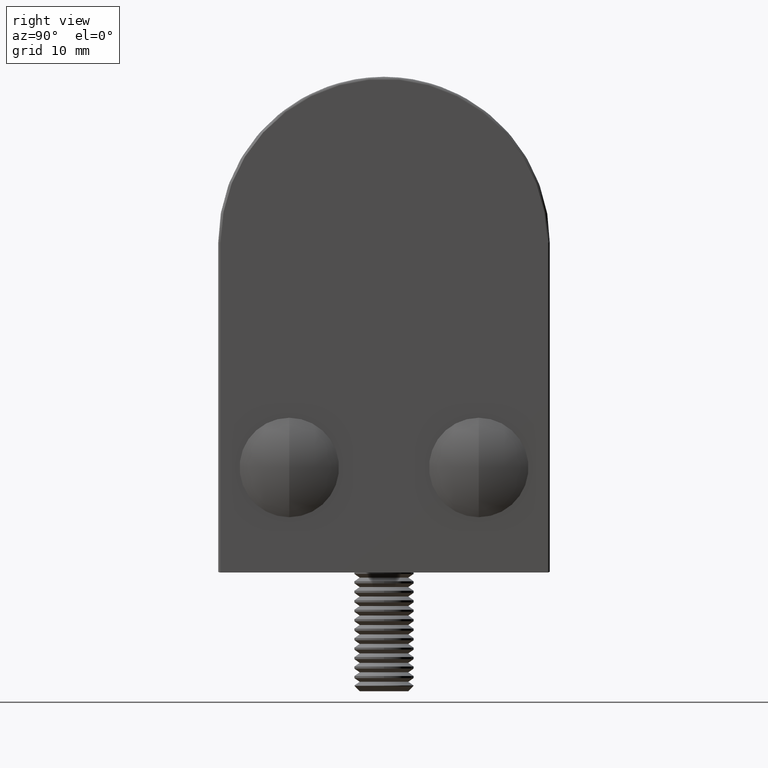
[diagram: clean part render]
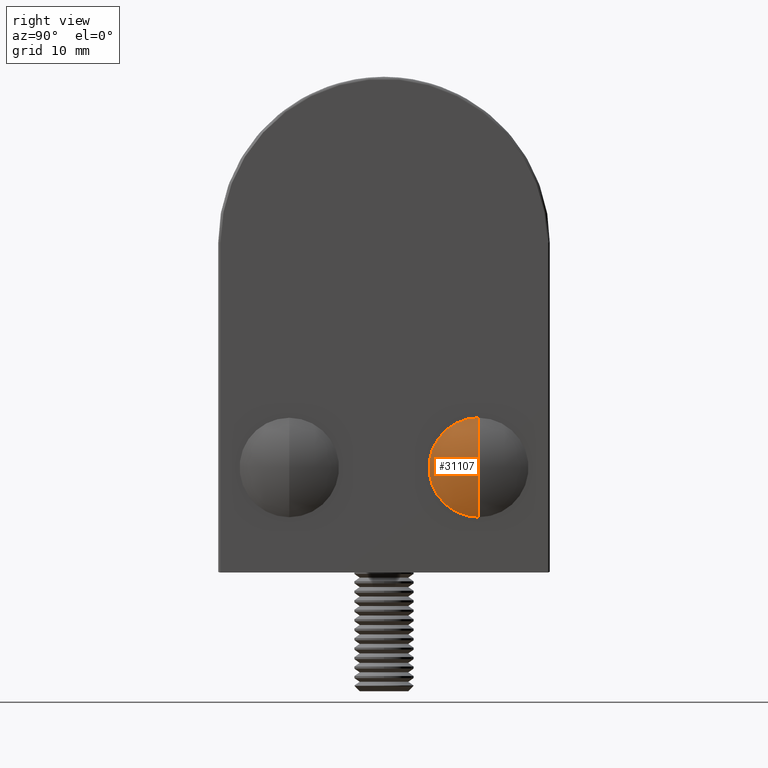
[diagram: same view with one face highlighted and labeled with its STEP entity id]
A machine part, right view. The second image highlights one B-rep face of the part: STEP entity #31107.
In plain terms, the highlighted spherical surface has radius 9.32 mm.
Its self-contained STEP definition (entity closure, byte-faithful):
#1612 = CARTESIAN_POINT ( 'NONE',  ( 0.0000000000000000000, -8.319999999999993200, 0.0000000000000000000 ) ) ;
#2581 = DIRECTION ( 'NONE',  ( 0.0000000000000000000, 0.0000000000000000000, -1.000000000000000000 ) ) ;
#3413 = CIRCLE ( 'NONE', #20766, 9.319999999999995000 ) ;
#3953 = DIRECTION ( 'NONE',  ( 1.224646799147353200E-016, -0.0000000000000000000, 1.000000000000000000 ) ) ;
#5590 = AXIS2_PLACEMENT_3D ( 'NONE', #1612, #6098, #37147 ) ;
#6098 = DIRECTION ( 'NONE',  ( 0.0000000000000000000, 0.0000000000000000000, 1.000000000000000000 ) ) ;
#6846 = DIRECTION ( 'NONE',  ( 0.0000000000000000000, 0.0000000000000000000, -1.000000000000000000 ) ) ;
#11685 = DIRECTION ( 'NONE',  ( -0.0000000000000000000, -1.000000000000000000, -0.0000000000000000000 ) ) ;
#13218 = CARTESIAN_POINT ( 'NONE',  ( 4.200000000000000200, 8.673617379884035500E-016, 0.0000000000000000000 ) ) ;
#14297 = EDGE_CURVE ( 'NONE', #42675, #51186, #3413, .T. ) ;
#15836 = CIRCLE ( 'NONE', #47795, 4.200000000000001100 ) ;
#18505 = CARTESIAN_POINT ( 'NONE',  ( 5.706854084026663700E-016, 1.000000000000000900, 0.0000000000000000000 ) ) ;
#19225 = ORIENTED_EDGE ( 'NONE', *, *, #45324, .T. ) ;
#19963 = FACE_OUTER_BOUND ( 'NONE', #44865, .T. ) ;
#20766 = AXIS2_PLACEMENT_3D ( 'NONE', #51164, #2581, #55433 ) ;
#21017 = ORIENTED_EDGE ( 'NONE', *, *, #14297, .F. ) ;
#23195 = CARTESIAN_POINT ( 'NONE',  ( -4.200000000000000200, 8.673617379884035500E-016, 5.143516556418884900E-016 ) ) ;
#24467 = CARTESIAN_POINT ( 'NONE',  ( 0.0000000000000000000, 0.0000000000000000000, 0.0000000000000000000 ) ) ;
#25539 = SPHERICAL_SURFACE ( 'NONE', #5590, 9.319999999999995000 ) ;
#26076 = AXIS2_PLACEMENT_3D ( 'NONE', #26853, #3953, #35041 ) ;
#26853 = CARTESIAN_POINT ( 'NONE',  ( 0.0000000000000000000, -8.319999999999993200, 0.0000000000000000000 ) ) ;
#31107 = ADVANCED_FACE ( 'NONE', ( #19963 ), #25539, .T. ) ;
#35041 = DIRECTION ( 'NONE',  ( 1.000000000000000000, 0.0000000000000000000, -1.224646799147353500E-016 ) ) ;
#37147 = DIRECTION ( 'NONE',  ( 1.000000000000000000, 0.0000000000000000000, 0.0000000000000000000 ) ) ;
#39153 = ORIENTED_EDGE ( 'NONE', *, *, #50910, .F. ) ;
#42675 = VERTEX_POINT ( 'NONE', #18505 ) ;
#44865 = EDGE_LOOP ( 'NONE', ( #21017, #19225, #39153 ) ) ;
#45324 = EDGE_CURVE ( 'NONE', #42675, #55305, #56920, .T. ) ;
#47795 = AXIS2_PLACEMENT_3D ( 'NONE', #24467, #11685, #6846 ) ;
#50910 = EDGE_CURVE ( 'NONE', #51186, #55305, #15836, .T. ) ;
#51164 = CARTESIAN_POINT ( 'NONE',  ( 0.0000000000000000000, -8.319999999999993200, 0.0000000000000000000 ) ) ;
#51186 = VERTEX_POINT ( 'NONE', #13218 ) ;
#55305 = VERTEX_POINT ( 'NONE', #23195 ) ;
#55433 = DIRECTION ( 'NONE',  ( -1.000000000000000000, 0.0000000000000000000, 0.0000000000000000000 ) ) ;
#56920 = CIRCLE ( 'NONE', #26076, 9.319999999999995000 ) ;